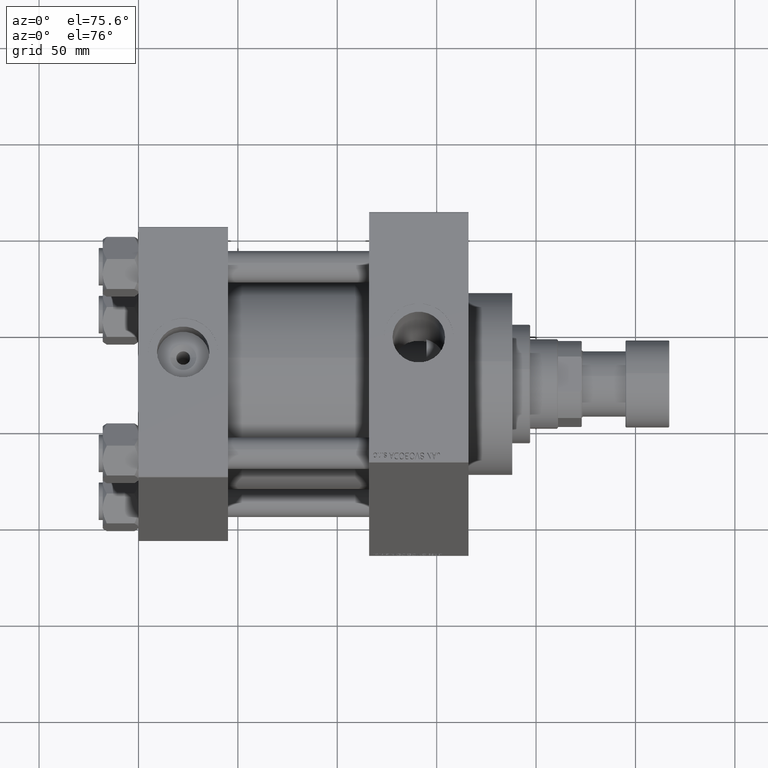
[diagram: clean part render]
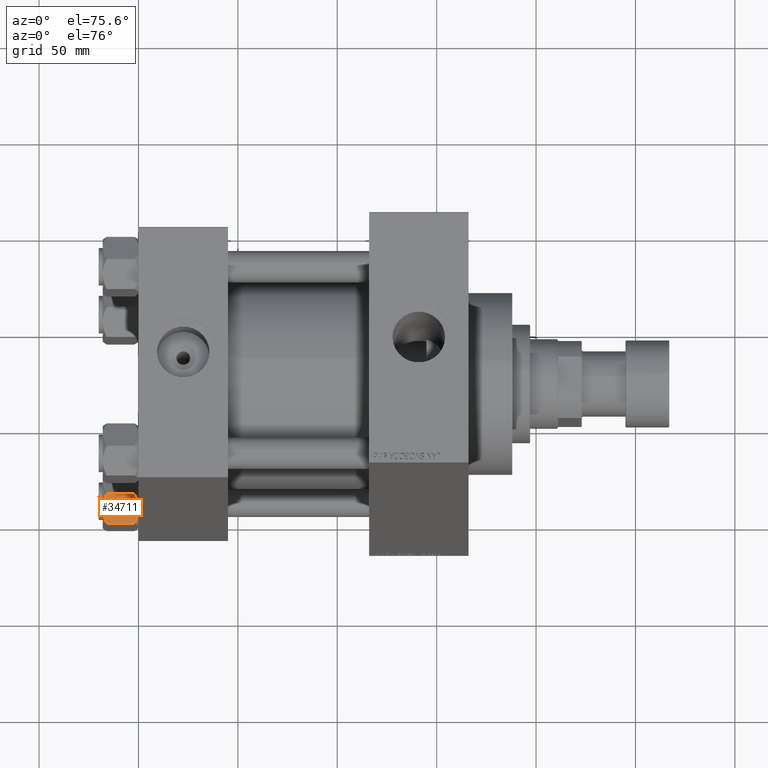
[diagram: same view with one face highlighted and labeled with its STEP entity id]
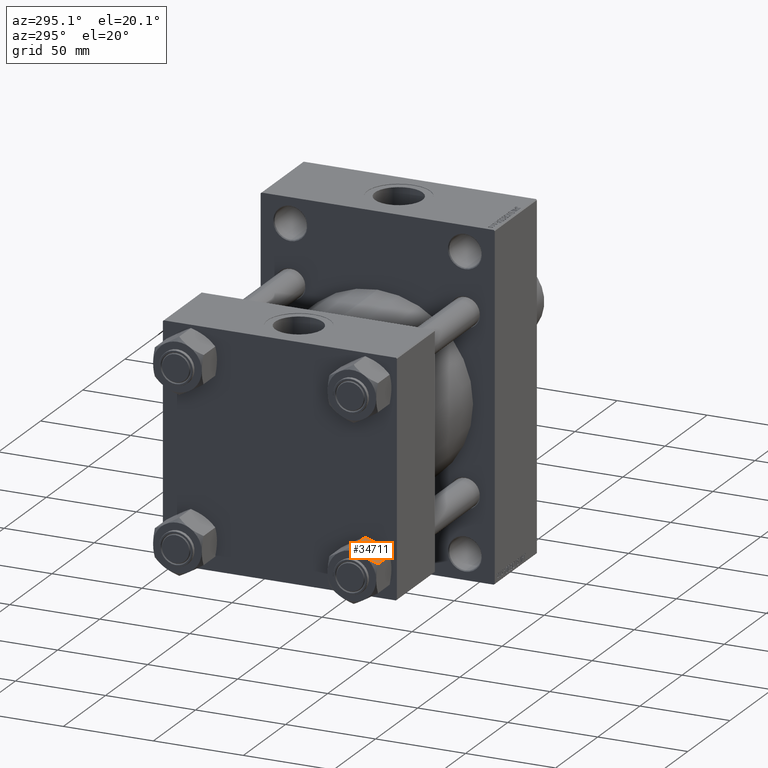
[diagram: same view with one face highlighted and labeled with its STEP entity id]
A machine part, auxiliary view. The second image highlights one B-rep face of the part: STEP entity #34711.
A second angle (auxiliary view) of the same face is appended — the face is thin or edge-on in the first view.
In plain terms, the highlighted planar face has unit normal (0, 0.5, -0.866).
Its self-contained STEP definition (entity closure, byte-faithful):
#50 = CARTESIAN_POINT ( 'NONE',  ( -13.02784502466562344, 4.489744118371584491, -0.1971866459924506432 ) ) ;
#287 = CARTESIAN_POINT ( 'NONE',  ( -9.124083218049239719, 11.25125790807804194, -17.05261278537718539 ) ) ;
#302 = VERTEX_POINT ( 'NONE', #30324 ) ;
#465 = VECTOR ( 'NONE', #28699, 999.9999999999998863 ) ;
#564 = ORIENTED_EDGE ( 'NONE', *, *, #28166, .F. ) ;
#1006 = CARTESIAN_POINT ( 'NONE',  ( -11.71500000000000519, 6.763658403556469523, -18.00000000000000000 ) ) ;
#1681 = VERTEX_POINT ( 'NONE', #7696 ) ;
#1690 = ORIENTED_EDGE ( 'NONE', *, *, #25137, .F. ) ;
#2404 = ORIENTED_EDGE ( 'NONE', *, *, #14034, .F. ) ;
#3023 = CARTESIAN_POINT ( 'NONE',  ( -12.04818928091285635, 6.186557640478063114, -18.00000000000000355 ) ) ;
#3214 = CARTESIAN_POINT ( 'NONE',  ( -15.61999999999999922, 5.965997004755138422E-15, -1.999999999999998224 ) ) ;
#4617 = VERTEX_POINT ( 'NONE', #3214 ) ;
#4984 = LINE ( 'NONE', #17141, #26603 ) ;
#5574 = LINE ( 'NONE', #47157, #14350 ) ;
#7430 = DIRECTION ( 'NONE',  ( 0.5000000000000000000, 0.8660254037844385966, 0.000000000000000000 ) ) ;
#7605 = CARTESIAN_POINT ( 'NONE',  ( -14.92394044919338292, 1.205610507090630223, -1.434462921875001573 ) ) ;
#7696 = CARTESIAN_POINT ( 'NONE',  ( -7.903528262322675246, 13.36532110482643532, -16.00000000000000000 ) ) ;
#7744 = EDGE_CURVE ( 'NONE', #302, #47486, #27292, .T. ) ;
#9347 = DIRECTION ( 'NONE',  ( 0.5000000000000001110, 0.8660254037844387076, 0.000000000000000000 ) ) ;
#9483 = ORIENTED_EDGE ( 'NONE', *, *, #21382, .T. ) ;
#10517 = CARTESIAN_POINT ( 'NONE',  ( -14.30591678195076533, 2.276058899034895777, -0.9473872146228109470 ) ) ;
#10648 = VERTEX_POINT ( 'NONE', #21103 ) ;
#11075 = CARTESIAN_POINT ( 'NONE',  ( -15.61999999999999922, 5.965997004755138422E-15, -18.00000000000000000 ) ) ;
#11490 = CARTESIAN_POINT ( 'NONE',  ( -12.37702203890362540, 5.617002596445050067, 4.589224508223797659E-15 ) ) ;
#11720 = CARTESIAN_POINT ( 'NONE',  ( -7.903528262322675246, 13.36532110482643532, -16.00000000000000000 ) ) ;
#12283 = B_SPLINE_CURVE_WITH_KNOTS ( 'NONE', 3,
 ( #17635, #15581, #39973, #25382, #32433, #36318, #3023, #17866 ),
 .UNSPECIFIED., .F., .F.,
 ( 4, 2, 2, 4 ),
 ( 4.472842641944555523E-07, 0.003945636373369313527, 0.005918230917921874813, 0.007890825462474436100 ),
 .UNSPECIFIED. ) ;
#12527 = DIRECTION ( 'NONE',  ( 0.5000000000000001110, 0.8660254037844387076, 0.000000000000000000 ) ) ;
#13066 = ORIENTED_EDGE ( 'NONE', *, *, #7744, .F. ) ;
#13136 = EDGE_CURVE ( 'NONE', #24236, #28920, #29151, .T. ) ;
#13181 = CARTESIAN_POINT ( 'NONE',  ( -11.04378428799595291, 7.926238119586004771, -0.05089381635300850582 ) ) ;
#13394 = VECTOR ( 'NONE', #9347, 999.9999999999998863 ) ;
#13950 = LINE ( 'NONE', #28054, #13394 ) ;
#14034 = EDGE_CURVE ( 'NONE', #25239, #21089, #12283, .T. ) ;
#14280 = VERTEX_POINT ( 'NONE', #46349 ) ;
#14350 = VECTOR ( 'NONE', #16764, 999.9999999999998863 ) ;
#14945 = AXIS2_PLACEMENT_3D ( 'NONE', #11075, #18860, #7430 ) ;
#15118 = CARTESIAN_POINT ( 'NONE',  ( -8.202637790192643052, 12.84724820552771085, -16.29368822085855584 ) ) ;
#15581 = CARTESIAN_POINT ( 'NONE',  ( -14.92760668674625713, 1.199260397376447962, -16.58801072835993295 ) ) ;
#16764 = DIRECTION ( 'NONE',  ( -0.5000000000000001110, -0.8660254037844387076, 0.000000000000000000 ) ) ;
#16995 = CARTESIAN_POINT ( 'NONE',  ( -7.809999999999997833, 13.52731680711293905, -1.999999999999998224 ) ) ;
#17141 = CARTESIAN_POINT ( 'NONE',  ( -15.61999999999999922, 5.965997004755138422E-15, -16.00000000000000000 ) ) ;
#17635 = CARTESIAN_POINT ( 'NONE',  ( -15.52647173767733157, 0.1619957022865013696, -16.00000000000000000 ) ) ;
#17866 = CARTESIAN_POINT ( 'NONE',  ( -11.71500000000000519, 6.763658403556469523, -18.00000000000000000 ) ) ;
#18135 = EDGE_CURVE ( 'NONE', #10648, #24236, #30565, .T. ) ;
#18297 = CARTESIAN_POINT ( 'NONE',  ( -11.71500000000000519, 6.763658403556469523, 0.000000000000000000 ) ) ;
#18834 = CARTESIAN_POINT ( 'NONE',  ( -15.61999999999999922, 5.965997004755138422E-15, -18.00000000000000000 ) ) ;
#18860 = DIRECTION ( 'NONE',  ( 0.8660254037844387076, -0.5000000000000001110, 0.000000000000000000 ) ) ;
#19256 = CARTESIAN_POINT ( 'NONE',  ( -9.439480280627257969, 10.70497417113493022, -17.26828031537188934 ) ) ;
#21089 = VERTEX_POINT ( 'NONE', #37415 ) ;
#21103 = CARTESIAN_POINT ( 'NONE',  ( -7.903528262322675246, 13.36532110482643532, -2.000000000000000000 ) ) ;
#21382 = EDGE_CURVE ( 'NONE', #14280, #4617, #37534, .T. ) ;
#22427 = CARTESIAN_POINT ( 'NONE',  ( -15.52647173767733157, 0.1619957022865013696, -2.000000000000000000 ) ) ;
#22713 = DIRECTION ( 'NONE',  ( -0.000000000000000000, -0.000000000000000000, 1.000000000000000000 ) ) ;
#23172 = CARTESIAN_POINT ( 'NONE',  ( -7.809999999999997833, 13.52731680711293905, -18.00000000000000000 ) ) ;
#24078 = VECTOR ( 'NONE', #22713, 1000.000000000000000 ) ;
#24236 = VERTEX_POINT ( 'NONE', #32496 ) ;
#25137 = EDGE_CURVE ( 'NONE', #21089, #1681, #37961, .T. ) ;
#25239 = VERTEX_POINT ( 'NONE', #34298 ) ;
#25382 = CARTESIAN_POINT ( 'NONE',  ( -13.36540581434587516, 3.905071680002321077, -17.61639331488793658 ) ) ;
#26213 = EDGE_CURVE ( 'NONE', #1681, #302, #13950, .T. ) ;
#26378 = CARTESIAN_POINT ( 'NONE',  ( -11.38181071908714692, 7.340759166634869715, 4.875521644395752752E-15 ) ) ;
#26603 = VECTOR ( 'NONE', #12527, 999.9999999999998863 ) ;
#27292 = LINE ( 'NONE', #23172, #43248 ) ;
#27530 = DIRECTION ( 'NONE',  ( -0.000000000000000000, -0.000000000000000000, 1.000000000000000000 ) ) ;
#28054 = CARTESIAN_POINT ( 'NONE',  ( -15.61999999999999922, 5.965997004755138422E-15, -16.00000000000000000 ) ) ;
#28166 = EDGE_CURVE ( 'NONE', #14280, #25239, #4984, .T. ) ;
#28699 = DIRECTION ( 'NONE',  ( -0.5000000000000001110, -0.8660254037844387076, 0.000000000000000000 ) ) ;
#28920 = VERTEX_POINT ( 'NONE', #35430 ) ;
#29151 = B_SPLINE_CURVE_WITH_KNOTS ( 'NONE', 3,
 ( #18297, #11490, #50, #37239, #10517, #7605, #39929, #22427 ),
 .UNSPECIFIED., .F., .F.,
 ( 4, 2, 2, 4 ),
 ( 0.007890825462474437835, 0.01181022244528555365, 0.01376992093669111156, 0.01572961942809666946 ),
 .UNSPECIFIED. ) ;
#30029 = CARTESIAN_POINT ( 'NONE',  ( -10.06459418565412456, 9.622245127110613083, -0.3836066851120558119 ) ) ;
#30324 = CARTESIAN_POINT ( 'NONE',  ( -7.809999999999997833, 13.52731680711293905, -16.00000000000000000 ) ) ;
#30565 = B_SPLINE_CURVE_WITH_KNOTS ( 'NONE', 3,
 ( #46011, #37797, #46253, #30029, #35039, #13181, #26378, #37563 ),
 .UNSPECIFIED., .F., .F.,
 ( 4, 2, 2, 4 ),
 ( 4.472842641925243172E-07, 0.003945636373369315261, 0.005918230917921876548, 0.007890825462474437835 ),
 .UNSPECIFIED. ) ;
#31546 = EDGE_CURVE ( 'NONE', #47486, #10648, #42825, .T. ) ;
#32433 = CARTESIAN_POINT ( 'NONE',  ( -13.04337073483128329, 4.462852799541082938, -17.75691532989870680 ) ) ;
#32496 = CARTESIAN_POINT ( 'NONE',  ( -11.71500000000000519, 6.763658403556469523, 0.000000000000000000 ) ) ;
#32940 = FACE_OUTER_BOUND ( 'NONE', #41423, .T. ) ;
#33585 = CARTESIAN_POINT ( 'NONE',  ( -11.05297796109637787, 7.910314210667883650, -18.00000000000000000 ) ) ;
#34298 = CARTESIAN_POINT ( 'NONE',  ( -15.52647173767733157, 0.1619957022865013696, -16.00000000000000000 ) ) ;
#34539 = CARTESIAN_POINT ( 'NONE',  ( -8.506059550806615022, 12.32170630002230638, -16.56553707812499709 ) ) ;
#34711 = ADVANCED_FACE ( 'NONE', ( #32940 ), #44383, .F. ) ;
#35039 = CARTESIAN_POINT ( 'NONE',  ( -10.38662926516872176, 9.064464007571851667, -0.2430846701012917277 ) ) ;
#35430 = CARTESIAN_POINT ( 'NONE',  ( -15.52647173767733157, 0.1619957022865013696, -2.000000000000000000 ) ) ;
#36318 = CARTESIAN_POINT ( 'NONE',  ( -12.38621571200405569, 5.601078687526929833, -17.94910618364698962 ) ) ;
#37239 = CARTESIAN_POINT ( 'NONE',  ( -13.99051971937274175, 2.822342635978007053, -0.7317196846281102118 ) ) ;
#37415 = CARTESIAN_POINT ( 'NONE',  ( -11.71500000000000519, 6.763658403556469523, -18.00000000000000000 ) ) ;
#37534 = LINE ( 'NONE', #18834, #24078 ) ;
#37563 = CARTESIAN_POINT ( 'NONE',  ( -11.71500000000000519, 6.763658403556469523, 0.000000000000000000 ) ) ;
#37797 = CARTESIAN_POINT ( 'NONE',  ( -8.502393313253746143, 12.32805640973648309, -1.411989271640066379 ) ) ;
#37961 = B_SPLINE_CURVE_WITH_KNOTS ( 'NONE', 3,
 ( #1006, #33585, #41365, #19256, #287, #34539, #15118, #11720 ),
 .UNSPECIFIED., .F., .F.,
 ( 4, 2, 2, 4 ),
 ( 0.007890825462474436100, 0.01181022244528555365, 0.01376992093669111156, 0.01572961942809666946 ),
 .UNSPECIFIED. ) ;
#39929 = CARTESIAN_POINT ( 'NONE',  ( -15.22736220980736022, 0.6800686015852228650, -1.706311779141443052 ) ) ;
#39973 = CARTESIAN_POINT ( 'NONE',  ( -14.31545111198821374, 2.259544954993891963, -17.08577173959730544 ) ) ;
#40591 = ORIENTED_EDGE ( 'NONE', *, *, #13136, .F. ) ;
#41060 = ORIENTED_EDGE ( 'NONE', *, *, #31546, .F. ) ;
#41130 = ORIENTED_EDGE ( 'NONE', *, *, #26213, .F. ) ;
#41365 = CARTESIAN_POINT ( 'NONE',  ( -10.40215497533437272, 9.037572688741345672, -17.80281335400754728 ) ) ;
#41423 = EDGE_LOOP ( 'NONE', ( #564, #9483, #46845, #40591, #47345, #41060, #13066, #41130, #1690, #2404 ) ) ;
#42825 = LINE ( 'NONE', #46488, #465 ) ;
#43248 = VECTOR ( 'NONE', #27530, 1000.000000000000000 ) ;
#44383 = PLANE ( 'NONE',  #14945 ) ;
#45303 = EDGE_CURVE ( 'NONE', #28920, #4617, #5574, .T. ) ;
#46011 = CARTESIAN_POINT ( 'NONE',  ( -7.903528262322675246, 13.36532110482643532, -2.000000000000000000 ) ) ;
#46253 = CARTESIAN_POINT ( 'NONE',  ( -9.114548888011782424, 11.26777185211904353, -0.9142282604026915616 ) ) ;
#46349 = CARTESIAN_POINT ( 'NONE',  ( -15.61999999999999922, 5.965997004755138422E-15, -16.00000000000000000 ) ) ;
#46488 = CARTESIAN_POINT ( 'NONE',  ( -15.61999999999999922, 5.965997004755138422E-15, -1.999999999999998224 ) ) ;
#46845 = ORIENTED_EDGE ( 'NONE', *, *, #45303, .F. ) ;
#47157 = CARTESIAN_POINT ( 'NONE',  ( -15.61999999999999922, 5.965997004755138422E-15, -1.999999999999998224 ) ) ;
#47345 = ORIENTED_EDGE ( 'NONE', *, *, #18135, .F. ) ;
#47486 = VERTEX_POINT ( 'NONE', #16995 ) ;